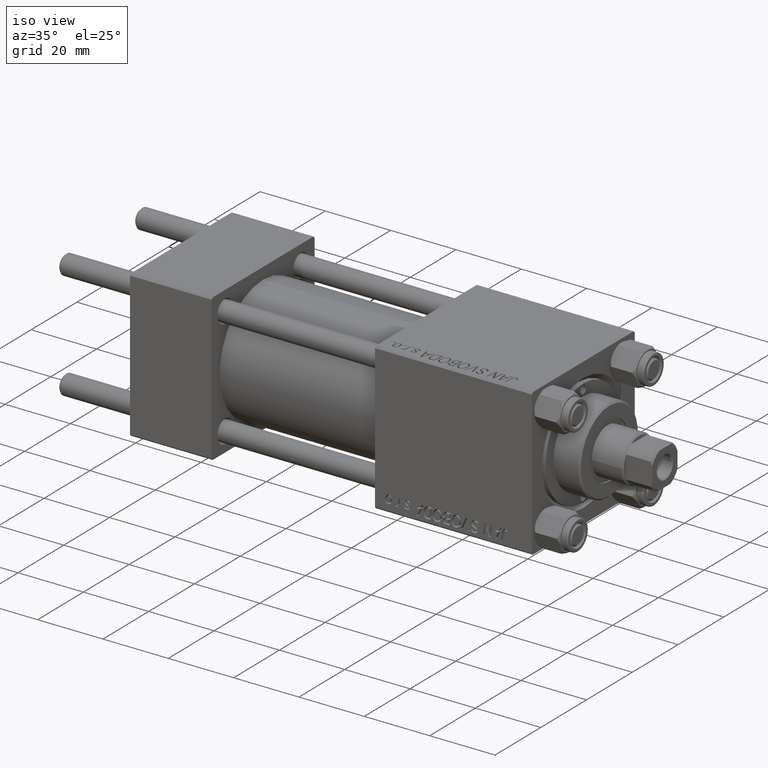
[diagram: clean part render]
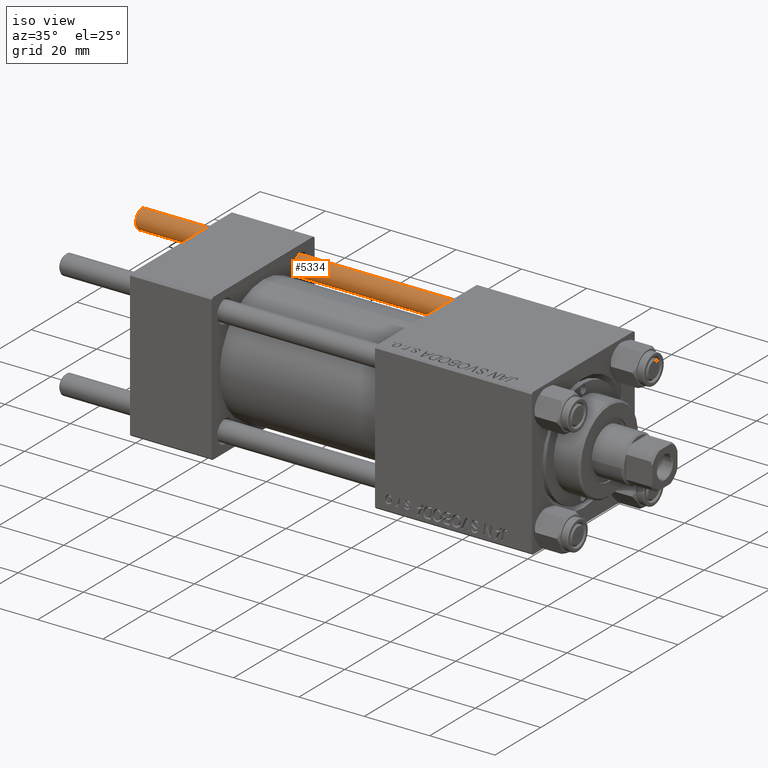
[diagram: same view with one face highlighted and labeled with its STEP entity id]
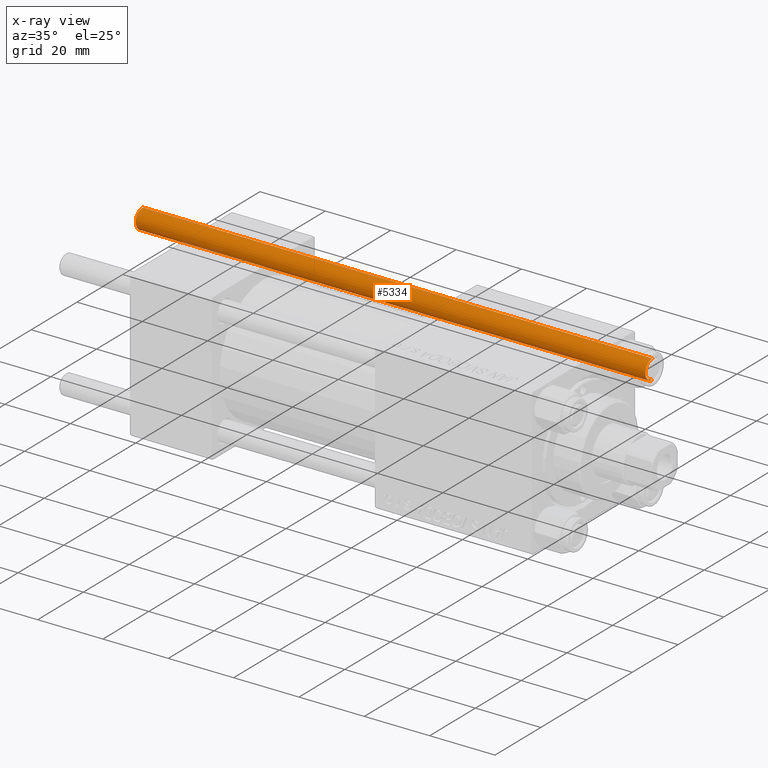
[diagram: x-ray of the same camera — body ghosted, the highlighted face saturated]
A machine part, iso view. The second image highlights one B-rep face of the part: STEP entity #5334.
The next image is the same camera in x-ray: the body ghosted, the highlighted face saturated — about 1% of this face is hidden behind the body in this view.
In plain terms, the highlighted cylindrical surface (edge-blend (fillet) strip) has radius 3 mm, axis along (-1, -0, -0).
Its self-contained STEP definition (entity closure, byte-faithful):
#672 = CYLINDRICAL_SURFACE ( 'NONE', #38046, 3.000000000000000444 ) ;
#1169 = FACE_OUTER_BOUND ( 'NONE', #33501, .T. ) ;
#1581 = CIRCLE ( 'NONE', #42775, 3.000000000000000444 ) ;
#4581 = EDGE_CURVE ( 'NONE', #4583, #38271, #41273, .T. ) ;
#4583 = VERTEX_POINT ( 'NONE', #40010 ) ;
#4709 = CARTESIAN_POINT ( 'NONE',  ( 0.000000000000000000, 0.000000000000000000, 157.0000000000000000 ) ) ;
#5334 = ADVANCED_FACE ( 'NONE', ( #1169 ), #672, .T. ) ;
#5865 = CARTESIAN_POINT ( 'NONE',  ( 0.000000000000000000, 0.000000000000000000, 0.4999999999999726885 ) ) ;
#6195 = EDGE_CURVE ( 'NONE', #17511, #38271, #48989, .T. ) ;
#10918 = CARTESIAN_POINT ( 'NONE',  ( 3.000000000000000444, 3.673940397442060361E-16, 0.4999999999999726885 ) ) ;
#13614 = CARTESIAN_POINT ( 'NONE',  ( -3.000000000000000444, 0.000000000000000000, 156.5000000000000284 ) ) ;
#14320 = DIRECTION ( 'NONE',  ( -0.000000000000000000, -0.000000000000000000, -1.000000000000000000 ) ) ;
#17511 = VERTEX_POINT ( 'NONE', #25371 ) ;
#17674 = CARTESIAN_POINT ( 'NONE',  ( -3.000000000000000444, 0.000000000000000000, 157.0000000000000000 ) ) ;
#24580 = DIRECTION ( 'NONE',  ( 1.000000000000000000, 0.000000000000000000, 0.000000000000000000 ) ) ;
#25113 = ORIENTED_EDGE ( 'NONE', *, *, #4581, .T. ) ;
#25214 = CARTESIAN_POINT ( 'NONE',  ( 3.000000000000000444, 3.673940397442060361E-16, 157.0000000000000000 ) ) ;
#25371 = CARTESIAN_POINT ( 'NONE',  ( 3.000000000000000444, 3.673940397442060361E-16, 156.5000000000000284 ) ) ;
#27452 = DIRECTION ( 'NONE',  ( -0.000000000000000000, -0.000000000000000000, -1.000000000000000000 ) ) ;
#28188 = DIRECTION ( 'NONE',  ( 0.000000000000000000, 0.000000000000000000, -1.000000000000000000 ) ) ;
#29186 = CARTESIAN_POINT ( 'NONE',  ( 0.000000000000000000, 0.000000000000000000, 156.5000000000000284 ) ) ;
#31076 = ORIENTED_EDGE ( 'NONE', *, *, #33172, .T. ) ;
#32923 = DIRECTION ( 'NONE',  ( -0.000000000000000000, -0.000000000000000000, 1.000000000000000000 ) ) ;
#33112 = DIRECTION ( 'NONE',  ( -0.000000000000000000, -0.000000000000000000, -1.000000000000000000 ) ) ;
#33172 = EDGE_CURVE ( 'NONE', #17511, #50005, #1581, .T. ) ;
#33501 = EDGE_LOOP ( 'NONE', ( #49633, #31076, #34955, #25113 ) ) ;
#34955 = ORIENTED_EDGE ( 'NONE', *, *, #42263, .T. ) ;
#35776 = VECTOR ( 'NONE', #33112, 1000.000000000000000 ) ;
#36048 = DIRECTION ( 'NONE',  ( 1.000000000000000000, 0.000000000000000000, 0.000000000000000000 ) ) ;
#38046 = AXIS2_PLACEMENT_3D ( 'NONE', #4709, #27452, #43392 ) ;
#38271 = VERTEX_POINT ( 'NONE', #10918 ) ;
#39678 = AXIS2_PLACEMENT_3D ( 'NONE', #5865, #32923, #24580 ) ;
#40010 = CARTESIAN_POINT ( 'NONE',  ( -3.000000000000000444, 0.000000000000000000, 0.4999999999999726885 ) ) ;
#41273 = CIRCLE ( 'NONE', #39678, 3.000000000000000444 ) ;
#42263 = EDGE_CURVE ( 'NONE', #50005, #4583, #48308, .T. ) ;
#42775 = AXIS2_PLACEMENT_3D ( 'NONE', #29186, #28188, #36048 ) ;
#43392 = DIRECTION ( 'NONE',  ( -1.000000000000000000, 0.000000000000000000, 0.000000000000000000 ) ) ;
#48308 = LINE ( 'NONE', #17674, #35776 ) ;
#48608 = VECTOR ( 'NONE', #14320, 1000.000000000000000 ) ;
#48989 = LINE ( 'NONE', #25214, #48608 ) ;
#49633 = ORIENTED_EDGE ( 'NONE', *, *, #6195, .F. ) ;
#50005 = VERTEX_POINT ( 'NONE', #13614 ) ;